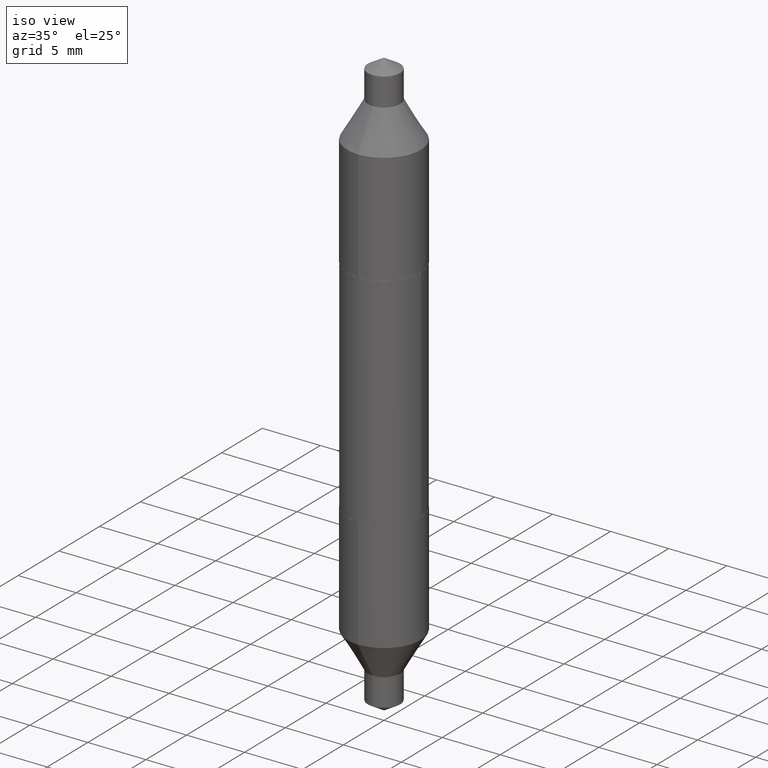
[diagram: clean part render]
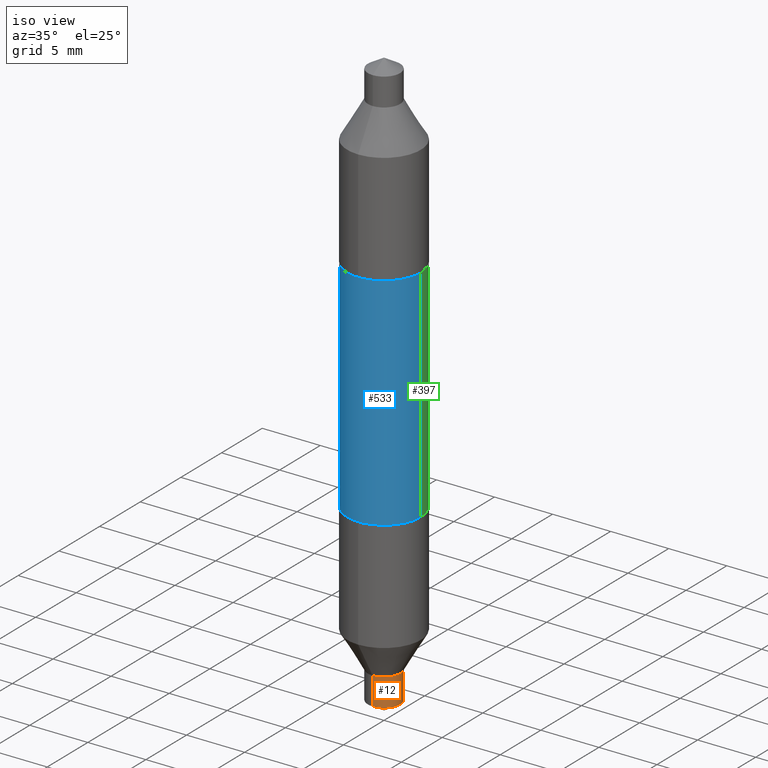
[diagram: same view with three faces highlighted in distinct colors, each labeled with its STEP entity id]
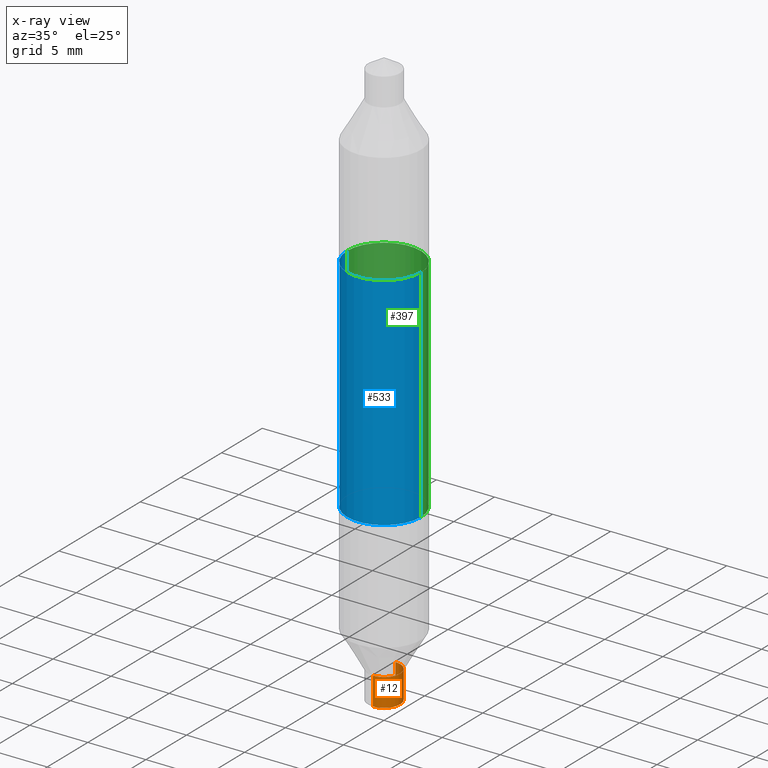
[diagram: x-ray of the same camera — body ghosted, the three highlighted faces saturated]
A machine part, iso view with three faces highlighted in distinct colors.
The next image is the same camera in x-ray (body ghosted, the three faces saturated) — at least one of them is partly hidden behind the body in this view.
Their STEP definitions:

[orange] entity #12 — the highlighted cylindrical surface (edge-blend (fillet) strip) has radius 1.3894 mm, axis along (-0, 0, 1).
#6 = FACE_OUTER_BOUND ( 'NONE', #276, .T. ) ;
#8 = CARTESIAN_POINT ( 'NONE',  ( 3.886668764607838145E-16, 0.05469999999999868717, -0.3750000000000001665 ) ) ;
#10 = VERTEX_POINT ( 'NONE', #272 ) ;
#12 = ADVANCED_FACE ( 'NONE', ( #6 ), #217, .T. ) ;
#13 = ORIENTED_EDGE ( 'NONE', *, *, #361, .F. ) ;
#40 = EDGE_CURVE ( 'NONE', #206, #288, #543, .T. ) ;
#90 = DIRECTION ( 'NONE',  ( -6.982962677686265922E-15, -1.000000000000000000, 2.497118824190368833E-15 ) ) ;
#147 = DIRECTION ( 'NONE',  ( -2.454362535592602182E-29, 3.478745012132013039E-15, 1.000000000000000000 ) ) ;
#165 = ORIENTED_EDGE ( 'NONE', *, *, #231, .T. ) ;
#206 = VERTEX_POINT ( 'NONE', #446 ) ;
#217 = CYLINDRICAL_SURFACE ( 'NONE', #459, 0.05469999999999999168 ) ;
#221 = DIRECTION ( 'NONE',  ( -2.454362535592602182E-29, 3.478745012132013433E-15, 1.000000000000000000 ) ) ;
#231 = EDGE_CURVE ( 'NONE', #270, #206, #591, .T. ) ;
#238 = DIRECTION ( 'NONE',  ( -2.454362535592602182E-29, 3.478745012132013039E-15, 1.000000000000000000 ) ) ;
#242 = CARTESIAN_POINT ( 'NONE',  ( 2.370359667417556820E-29, -3.369184958434539402E-15, -0.9671329241391926068 ) ) ;
#246 = CARTESIAN_POINT ( 'NONE',  ( -3.819680584694295168E-16, -0.05470000000000129620, -0.3749999999999997780 ) ) ;
#248 = EDGE_CURVE ( 'NONE', #270, #10, #249, .T. ) ;
#249 = LINE ( 'NONE', #246, #605 ) ;
#270 = VERTEX_POINT ( 'NONE', #626 ) ;
#272 = CARTESIAN_POINT ( 'NONE',  ( -3.819680584694172401E-16, -0.05470000000000303092, -0.8725999999999998202 ) ) ;
#276 = EDGE_LOOP ( 'NONE', ( #165, #489, #13, #540 ) ) ;
#288 = VERTEX_POINT ( 'NONE', #572 ) ;
#355 = VECTOR ( 'NONE', #221, 39.37007874015748143 ) ;
#361 = EDGE_CURVE ( 'NONE', #10, #288, #420, .T. ) ;
#405 = AXIS2_PLACEMENT_3D ( 'NONE', #417, #147, #90 ) ;
#417 = CARTESIAN_POINT ( 'NONE',  ( 2.138341600030304914E-29, -3.040329020103069038E-15, -0.8726000000000000423 ) ) ;
#420 = CIRCLE ( 'NONE', #405, 0.05469999999999999168 ) ;
#433 = CARTESIAN_POINT ( 'NONE',  ( 9.170508023194260837E-30, -1.309305502066179347E-15, -0.3749999999999999445 ) ) ;
#446 = CARTESIAN_POINT ( 'NONE',  ( 3.886668764607983591E-16, 0.05469999999999661244, -0.9671329241391927178 ) ) ;
#454 = DIRECTION ( 'NONE',  ( -6.982962677686265922E-15, -1.000000000000000000, 2.497118824190368833E-15 ) ) ;
#459 = AXIS2_PLACEMENT_3D ( 'NONE', #433, #645, #531 ) ;
#460 = DIRECTION ( 'NONE',  ( -2.454362535592602182E-29, 3.478745012132013433E-15, 1.000000000000000000 ) ) ;
#489 = ORIENTED_EDGE ( 'NONE', *, *, #40, .T. ) ;
#503 = AXIS2_PLACEMENT_3D ( 'NONE', #242, #238, #454 ) ;
#531 = DIRECTION ( 'NONE',  ( -6.982962677686265922E-15, -1.000000000000000000, 3.745678236285553052E-15 ) ) ;
#540 = ORIENTED_EDGE ( 'NONE', *, *, #248, .F. ) ;
#543 = LINE ( 'NONE', #8, #355 ) ;
#572 = CARTESIAN_POINT ( 'NONE',  ( 3.886668764607983591E-16, 0.05469999999999694551, -0.8726000000000001533 ) ) ;
#591 = CIRCLE ( 'NONE', #503, 0.05469999999999999168 ) ;
#605 = VECTOR ( 'NONE', #460, 39.37007874015748143 ) ;
#626 = CARTESIAN_POINT ( 'NONE',  ( -3.819680584694148736E-16, -0.05470000000000335705, -0.9671329241391924958 ) ) ;
#645 = DIRECTION ( 'NONE',  ( -2.454362535592602182E-29, 3.478745012132013039E-15, 1.000000000000000000 ) ) ;

[blue] entity #533 — the highlighted cylindrical surface (partial cylindrical patch) has radius 3.175 mm, axis along (-0, 0, 1).
#7 = ORIENTED_EDGE ( 'NONE', *, *, #518, .T. ) ;
#18 = DIRECTION ( 'NONE',  ( -2.445468806185136597E-29, 3.491481338843145583E-15, 1.000000000000000000 ) ) ;
#51 = ORIENTED_EDGE ( 'NONE', *, *, #662, .F. ) ;
#73 = FACE_OUTER_BOUND ( 'NONE', #173, .T. ) ;
#84 = DIRECTION ( 'NONE',  ( -2.445468806185136877E-29, 3.491481338843145188E-15, 1.000000000000000000 ) ) ;
#122 = LINE ( 'NONE', #358, #627 ) ;
#123 = EDGE_CURVE ( 'NONE', #373, #423, #530, .T. ) ;
#173 = EDGE_LOOP ( 'NONE', ( #51, #438, #7, #434 ) ) ;
#180 = DIRECTION ( 'NONE',  ( 1.000000000000000000, -6.982962677686265922E-15, 4.876176775795935232E-29 ) ) ;
#237 = CARTESIAN_POINT ( 'NONE',  ( -0.1250000000000000555, 8.881784197001251337E-16, 0.3744999999999999996 ) ) ;
#273 = AXIS2_PLACEMENT_3D ( 'NONE', #681, #18, #180 ) ;
#281 = VERTEX_POINT ( 'NONE', #237 ) ;
#290 = CYLINDRICAL_SURFACE ( 'NONE', #273, 0.1250000000000000278 ) ;
#298 = DIRECTION ( 'NONE',  ( 1.000000000000000000, -6.982962677686267499E-15, 0.000000000000000000 ) ) ;
#308 = CARTESIAN_POINT ( 'NONE',  ( -0.1250000000000000278, -4.193813416966324631E-16, -0.3744999999999999996 ) ) ;
#350 = AXIS2_PLACEMENT_3D ( 'NONE', #411, #464, #577 ) ;
#358 = CARTESIAN_POINT ( 'NONE',  ( -0.1250000000000000278, 8.881784197001254296E-16, -6.148668862818633629E-30 ) ) ;
#373 = VERTEX_POINT ( 'NONE', #308 ) ;
#375 = LINE ( 'NONE', #596, #490 ) ;
#411 = CARTESIAN_POINT ( 'NONE',  ( -9.158280679163337026E-30, 1.307559761396758041E-15, 0.3744999999999999996 ) ) ;
#423 = VERTEX_POINT ( 'NONE', #525 ) ;
#434 = ORIENTED_EDGE ( 'NONE', *, *, #673, .F. ) ;
#438 = ORIENTED_EDGE ( 'NONE', *, *, #123, .T. ) ;
#449 = AXIS2_PLACEMENT_3D ( 'NONE', #549, #496, #298 ) ;
#464 = DIRECTION ( 'NONE',  ( -2.445468806185136597E-29, 3.491481338843145583E-15, 1.000000000000000000 ) ) ;
#490 = VECTOR ( 'NONE', #550, 39.37007874015748143 ) ;
#496 = DIRECTION ( 'NONE',  ( -2.445468806185136597E-29, 3.491481338843145583E-15, 1.000000000000000000 ) ) ;
#518 = EDGE_CURVE ( 'NONE', #423, #554, #375, .T. ) ;
#525 = CARTESIAN_POINT ( 'NONE',  ( 0.1250000000000000278, -2.180430096107541577E-15, -0.3744999999999999996 ) ) ;
#530 = CIRCLE ( 'NONE', #449, 0.1250000000000000278 ) ;
#533 = ADVANCED_FACE ( 'NONE', ( #73 ), #290, .T. ) ;
#549 = CARTESIAN_POINT ( 'NONE',  ( 9.158280679163337026E-30, -1.307559761396758041E-15, -0.3744999999999999996 ) ) ;
#550 = DIRECTION ( 'NONE',  ( -2.445468806185136877E-29, 3.491481338843145188E-15, 1.000000000000000000 ) ) ;
#554 = VERTEX_POINT ( 'NONE', #625 ) ;
#568 = CIRCLE ( 'NONE', #350, 0.1250000000000000278 ) ;
#577 = DIRECTION ( 'NONE',  ( 1.000000000000000000, -6.982962677686267499E-15, 0.000000000000000000 ) ) ;
#596 = CARTESIAN_POINT ( 'NONE',  ( 0.1250000000000000278, -8.728703347107834374E-16, 6.095220969744920442E-30 ) ) ;
#625 = CARTESIAN_POINT ( 'NONE',  ( 0.1250000000000000278, 4.346894266859744553E-16, 0.3744999999999999996 ) ) ;
#627 = VECTOR ( 'NONE', #84, 39.37007874015748143 ) ;
#662 = EDGE_CURVE ( 'NONE', #373, #281, #122, .T. ) ;
#673 = EDGE_CURVE ( 'NONE', #281, #554, #568, .T. ) ;
#681 = CARTESIAN_POINT ( 'NONE',  ( 0.000000000000000000, 0.000000000000000000, 0.000000000000000000 ) ) ;

[green] entity #397 — the highlighted cylindrical surface (partial cylindrical patch) has radius 3.175 mm, axis along (-0, 0, 1).
#4 = ORIENTED_EDGE ( 'NONE', *, *, #68, .T. ) ;
#68 = EDGE_CURVE ( 'NONE', #423, #373, #638, .T. ) ;
#72 = DIRECTION ( 'NONE',  ( 1.000000000000000000, -6.982962677686267499E-15, 0.000000000000000000 ) ) ;
#84 = DIRECTION ( 'NONE',  ( -2.445468806185136877E-29, 3.491481338843145188E-15, 1.000000000000000000 ) ) ;
#106 = ORIENTED_EDGE ( 'NONE', *, *, #662, .T. ) ;
#122 = LINE ( 'NONE', #358, #627 ) ;
#127 = EDGE_LOOP ( 'NONE', ( #4, #106, #487, #492 ) ) ;
#132 = EDGE_CURVE ( 'NONE', #554, #281, #505, .T. ) ;
#237 = CARTESIAN_POINT ( 'NONE',  ( -0.1250000000000000555, 8.881784197001251337E-16, 0.3744999999999999996 ) ) ;
#278 = AXIS2_PLACEMENT_3D ( 'NONE', #529, #644, #314 ) ;
#281 = VERTEX_POINT ( 'NONE', #237 ) ;
#308 = CARTESIAN_POINT ( 'NONE',  ( -0.1250000000000000278, -4.193813416966324631E-16, -0.3744999999999999996 ) ) ;
#314 = DIRECTION ( 'NONE',  ( 1.000000000000000000, -6.982962677686265922E-15, 4.876176775795935232E-29 ) ) ;
#339 = CARTESIAN_POINT ( 'NONE',  ( -9.158280679163337026E-30, 1.307559761396758041E-15, 0.3744999999999999996 ) ) ;
#358 = CARTESIAN_POINT ( 'NONE',  ( -0.1250000000000000278, 8.881784197001254296E-16, -6.148668862818633629E-30 ) ) ;
#365 = AXIS2_PLACEMENT_3D ( 'NONE', #383, #675, #72 ) ;
#373 = VERTEX_POINT ( 'NONE', #308 ) ;
#375 = LINE ( 'NONE', #596, #490 ) ;
#383 = CARTESIAN_POINT ( 'NONE',  ( 9.158280679163337026E-30, -1.307559761396758041E-15, -0.3744999999999999996 ) ) ;
#397 = ADVANCED_FACE ( 'NONE', ( #427 ), #583, .T. ) ;
#423 = VERTEX_POINT ( 'NONE', #525 ) ;
#427 = FACE_OUTER_BOUND ( 'NONE', #127, .T. ) ;
#451 = DIRECTION ( 'NONE',  ( 1.000000000000000000, -6.982962677686267499E-15, 0.000000000000000000 ) ) ;
#487 = ORIENTED_EDGE ( 'NONE', *, *, #132, .F. ) ;
#490 = VECTOR ( 'NONE', #550, 39.37007874015748143 ) ;
#492 = ORIENTED_EDGE ( 'NONE', *, *, #518, .F. ) ;
#505 = CIRCLE ( 'NONE', #633, 0.1250000000000000278 ) ;
#518 = EDGE_CURVE ( 'NONE', #423, #554, #375, .T. ) ;
#525 = CARTESIAN_POINT ( 'NONE',  ( 0.1250000000000000278, -2.180430096107541577E-15, -0.3744999999999999996 ) ) ;
#529 = CARTESIAN_POINT ( 'NONE',  ( 0.000000000000000000, 0.000000000000000000, 0.000000000000000000 ) ) ;
#550 = DIRECTION ( 'NONE',  ( -2.445468806185136877E-29, 3.491481338843145188E-15, 1.000000000000000000 ) ) ;
#554 = VERTEX_POINT ( 'NONE', #625 ) ;
#562 = DIRECTION ( 'NONE',  ( -2.445468806185136597E-29, 3.491481338843145583E-15, 1.000000000000000000 ) ) ;
#583 = CYLINDRICAL_SURFACE ( 'NONE', #278, 0.1250000000000000278 ) ;
#596 = CARTESIAN_POINT ( 'NONE',  ( 0.1250000000000000278, -8.728703347107834374E-16, 6.095220969744920442E-30 ) ) ;
#625 = CARTESIAN_POINT ( 'NONE',  ( 0.1250000000000000278, 4.346894266859744553E-16, 0.3744999999999999996 ) ) ;
#627 = VECTOR ( 'NONE', #84, 39.37007874015748143 ) ;
#633 = AXIS2_PLACEMENT_3D ( 'NONE', #339, #562, #451 ) ;
#638 = CIRCLE ( 'NONE', #365, 0.1250000000000000278 ) ;
#644 = DIRECTION ( 'NONE',  ( -2.445468806185136597E-29, 3.491481338843145583E-15, 1.000000000000000000 ) ) ;
#662 = EDGE_CURVE ( 'NONE', #373, #281, #122, .T. ) ;
#675 = DIRECTION ( 'NONE',  ( -2.445468806185136597E-29, 3.491481338843145583E-15, 1.000000000000000000 ) ) ;